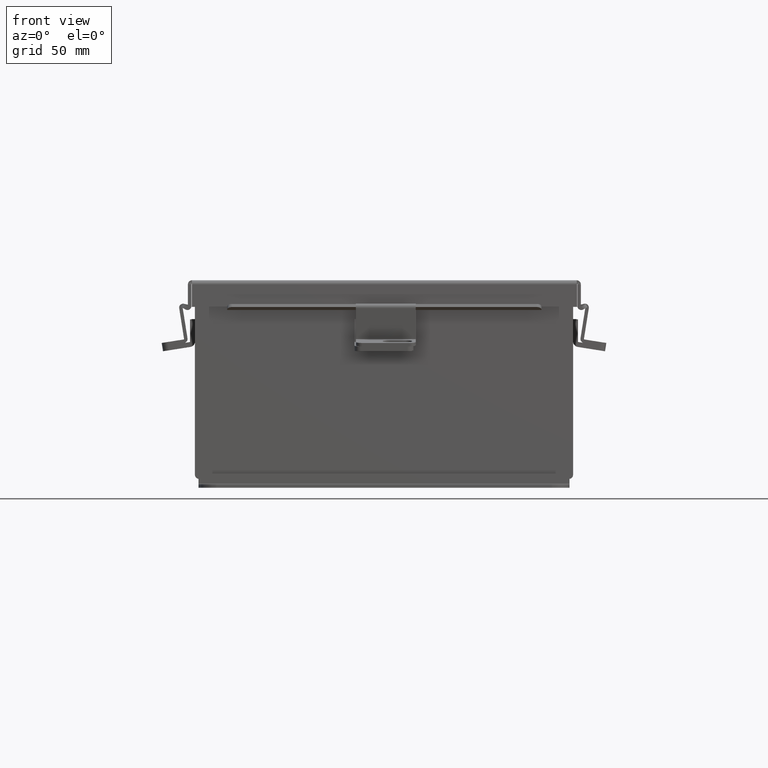
[diagram: clean part render]
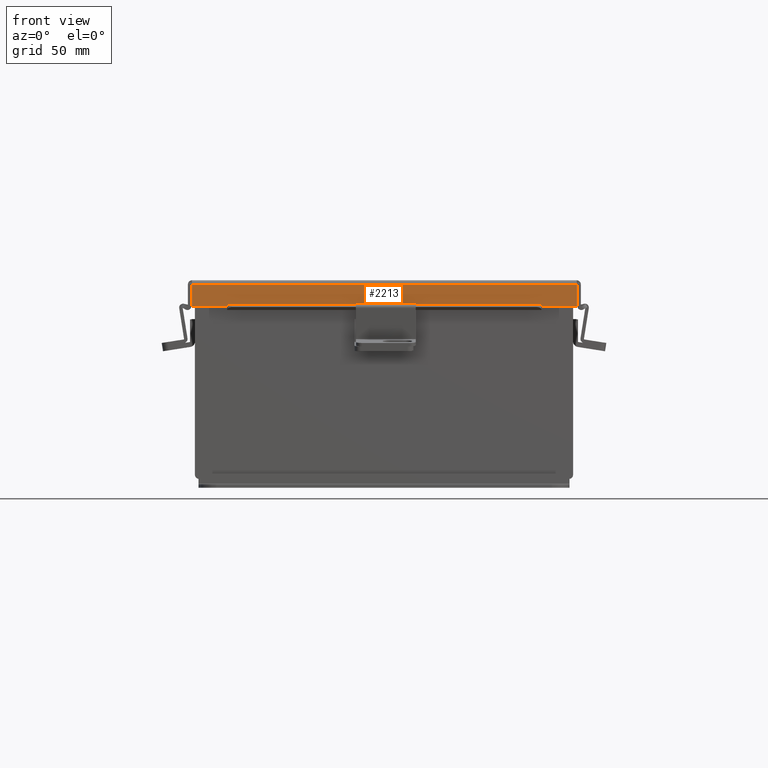
[diagram: same view with one face highlighted and labeled with its STEP entity id]
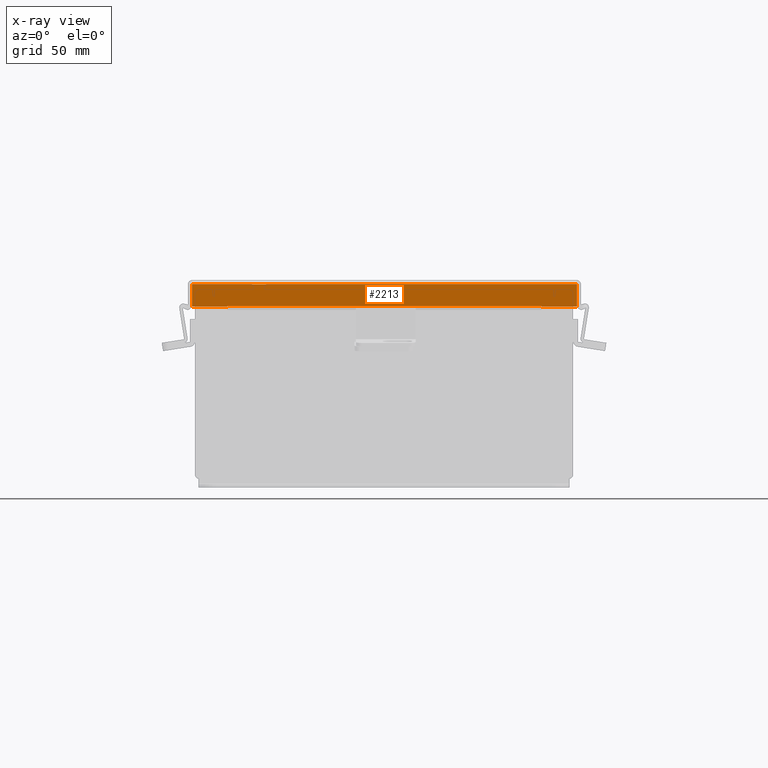
[diagram: x-ray of the same camera — body ghosted, the highlighted face saturated]
A machine part, front view. The second image highlights one B-rep face of the part: STEP entity #2213.
The next image is the same camera in x-ray: the body ghosted, the highlighted face saturated — about 0% of this face is hidden behind the body in this view.
In plain terms, the highlighted planar face has unit normal (0, 1, -0).
Its self-contained STEP definition (entity closure, byte-faithful):
#158 = VERTEX_POINT ( 'NONE', #8955 ) ;
#260 = CARTESIAN_POINT ( 'NONE',  ( 3.324478932188144500, -5.156250000000011500, 0.4717115427318838200 ) ) ;
#434 = CARTESIAN_POINT ( 'NONE',  ( 3.324478932188144500, -5.156250000000011500, 0.4717115427318838200 ) ) ;
#513 = EDGE_LOOP ( 'NONE', ( #1299, #5609, #2405, #4815, #3171, #9421, #5849, #5921 ) ) ;
#902 = VECTOR ( 'NONE', #7440, 39.37007874015748100 ) ;
#995 = VECTOR ( 'NONE', #7374, 39.37007874015748100 ) ;
#1134 = LINE ( 'NONE', #7400, #6802 ) ;
#1230 = CARTESIAN_POINT ( 'NONE',  ( 4.268512490100411300E-018, -5.156250000000011500, 0.4873000000000082300 ) ) ;
#1233 = LINE ( 'NONE', #4259, #4917 ) ;
#1299 = ORIENTED_EDGE ( 'NONE', *, *, #9472, .F. ) ;
#1555 = DIRECTION ( 'NONE',  ( 0.0000000000000000000, -4.484872552701402300E-015, 1.000000000000000000 ) ) ;
#1584 = LINE ( 'NONE', #260, #9213 ) ;
#2038 = CARTESIAN_POINT ( 'NONE',  ( 3.324478932188140900, -5.156250000000011500, 0.4873000000000038400 ) ) ;
#2063 = CARTESIAN_POINT ( 'NONE',  ( 4.268512490100411300E-018, -5.156250000000011500, 0.4873000000000082300 ) ) ;
#2213 = ADVANCED_FACE ( 'NONE', ( #3163 ), #5328, .F. ) ;
#2394 = CARTESIAN_POINT ( 'NONE',  ( -4.074478932188151600, -5.156250000000009800, 0.01299999999999956100 ) ) ;
#2405 = ORIENTED_EDGE ( 'NONE', *, *, #7857, .F. ) ;
#2526 = DIRECTION ( 'NONE',  ( 0.0000000000000000000, 1.846427556282924300E-029, 1.000000000000000000 ) ) ;
#2544 = LINE ( 'NONE', #1230, #6232 ) ;
#2916 = VERTEX_POINT ( 'NONE', #2038 ) ;
#3163 = FACE_OUTER_BOUND ( 'NONE', #513, .T. ) ;
#3171 = ORIENTED_EDGE ( 'NONE', *, *, #7843, .T. ) ;
#3284 = VERTEX_POINT ( 'NONE', #8059 ) ;
#3748 = CARTESIAN_POINT ( 'NONE',  ( 4.074478932188154300, -5.156250000000009800, 0.01299999999999956100 ) ) ;
#3837 = AXIS2_PLACEMENT_3D ( 'NONE', #4433, #6788, #1555 ) ;
#4233 = LINE ( 'NONE', #8856, #995 ) ;
#4240 = VERTEX_POINT ( 'NONE', #9179 ) ;
#4253 = VECTOR ( 'NONE', #5599, 39.37007874015748100 ) ;
#4259 = CARTESIAN_POINT ( 'NONE',  ( -3.324478932188148100, -5.156250000000011500, 0.4873000000000038400 ) ) ;
#4433 = CARTESIAN_POINT ( 'NONE',  ( 0.0000000000000000000, -5.156250000000009800, -2.349389274551266300E-014 ) ) ;
#4448 = VERTEX_POINT ( 'NONE', #8867 ) ;
#4815 = ORIENTED_EDGE ( 'NONE', *, *, #8318, .F. ) ;
#4824 = LINE ( 'NONE', #6669, #902 ) ;
#4917 = VECTOR ( 'NONE', #4921, 39.37007874015748100 ) ;
#4921 = DIRECTION ( 'NONE',  ( 1.401985044024166700E-013, -1.846427556282924300E-029, -1.000000000000000000 ) ) ;
#5179 = DIRECTION ( 'NONE',  ( 0.0000000000000000000, -4.484872552701402300E-015, 1.000000000000000000 ) ) ;
#5328 = PLANE ( 'NONE',  #3837 ) ;
#5448 = LINE ( 'NONE', #2063, #8332 ) ;
#5507 = VERTEX_POINT ( 'NONE', #2394 ) ;
#5599 = DIRECTION ( 'NONE',  ( -1.000000000000000000, -3.191323508412550700E-030, -0.0000000000000000000 ) ) ;
#5609 = ORIENTED_EDGE ( 'NONE', *, *, #6158, .T. ) ;
#5849 = ORIENTED_EDGE ( 'NONE', *, *, #9120, .F. ) ;
#5893 = VERTEX_POINT ( 'NONE', #434 ) ;
#5921 = ORIENTED_EDGE ( 'NONE', *, *, #9558, .F. ) ;
#6158 = EDGE_CURVE ( 'NONE', #4240, #4448, #5448, .T. ) ;
#6232 = VECTOR ( 'NONE', #8621, 39.37007874015748100 ) ;
#6457 = LINE ( 'NONE', #8525, #4253 ) ;
#6669 = CARTESIAN_POINT ( 'NONE',  ( -4.074478932188152500, -5.156250000000009800, -5.463695987328526400E-016 ) ) ;
#6788 = DIRECTION ( 'NONE',  ( 3.190581745723805500E-030, 1.000000000000000000, 4.484872552701402300E-015 ) ) ;
#6802 = VECTOR ( 'NONE', #5179, 39.37007874015748100 ) ;
#7192 = EDGE_CURVE ( 'NONE', #3284, #2916, #2544, .T. ) ;
#7374 = DIRECTION ( 'NONE',  ( 1.000000000000000000, 3.215975411700707400E-030, -0.0000000000000000000 ) ) ;
#7400 = CARTESIAN_POINT ( 'NONE',  ( 4.074478932188153400, -5.156250000000009800, -2.349389274551266300E-014 ) ) ;
#7440 = DIRECTION ( 'NONE',  ( -0.0000000000000000000, -4.484872552701402300E-015, 1.000000000000000000 ) ) ;
#7843 = EDGE_CURVE ( 'NONE', #7913, #3284, #1134, .T. ) ;
#7857 = EDGE_CURVE ( 'NONE', #5507, #4448, #4824, .T. ) ;
#7913 = VERTEX_POINT ( 'NONE', #3748 ) ;
#7973 = DIRECTION ( 'NONE',  ( -1.000000000000000000, -3.217044128639902500E-030, 8.216084191471065400E-018 ) ) ;
#8059 = CARTESIAN_POINT ( 'NONE',  ( 4.074478932188148900, -5.156250000000011500, 0.4873000000000038400 ) ) ;
#8318 = EDGE_CURVE ( 'NONE', #7913, #5507, #6457, .T. ) ;
#8332 = VECTOR ( 'NONE', #7973, 39.37007874015748100 ) ;
#8525 = CARTESIAN_POINT ( 'NONE',  ( -4.156250000000016900, -5.156250000000009800, 0.01299999999999956100 ) ) ;
#8621 = DIRECTION ( 'NONE',  ( -1.000000000000000000, -3.217044128639902500E-030, 8.216084191471065400E-018 ) ) ;
#8856 = CARTESIAN_POINT ( 'NONE',  ( -3.324478932188143600, -5.156250000000011500, 0.4717115427318838200 ) ) ;
#8867 = CARTESIAN_POINT ( 'NONE',  ( -4.074478932188156900, -5.156250000000011500, 0.4873000000000044000 ) ) ;
#8955 = CARTESIAN_POINT ( 'NONE',  ( -3.324478932188141400, -5.156250000000011500, 0.4717115427318838200 ) ) ;
#9120 = EDGE_CURVE ( 'NONE', #5893, #2916, #1584, .T. ) ;
#9179 = CARTESIAN_POINT ( 'NONE',  ( -3.324478932188148100, -5.156250000000011500, 0.4873000000000044000 ) ) ;
#9213 = VECTOR ( 'NONE', #2526, 39.37007874015748100 ) ;
#9421 = ORIENTED_EDGE ( 'NONE', *, *, #7192, .T. ) ;
#9472 = EDGE_CURVE ( 'NONE', #4240, #158, #1233, .T. ) ;
#9558 = EDGE_CURVE ( 'NONE', #158, #5893, #4233, .T. ) ;